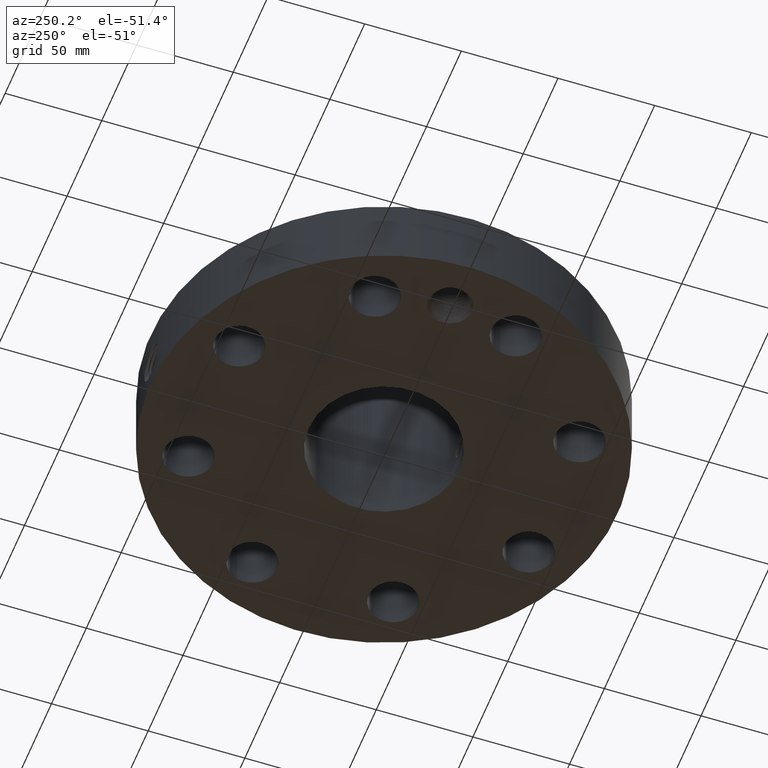
[diagram: clean part render]
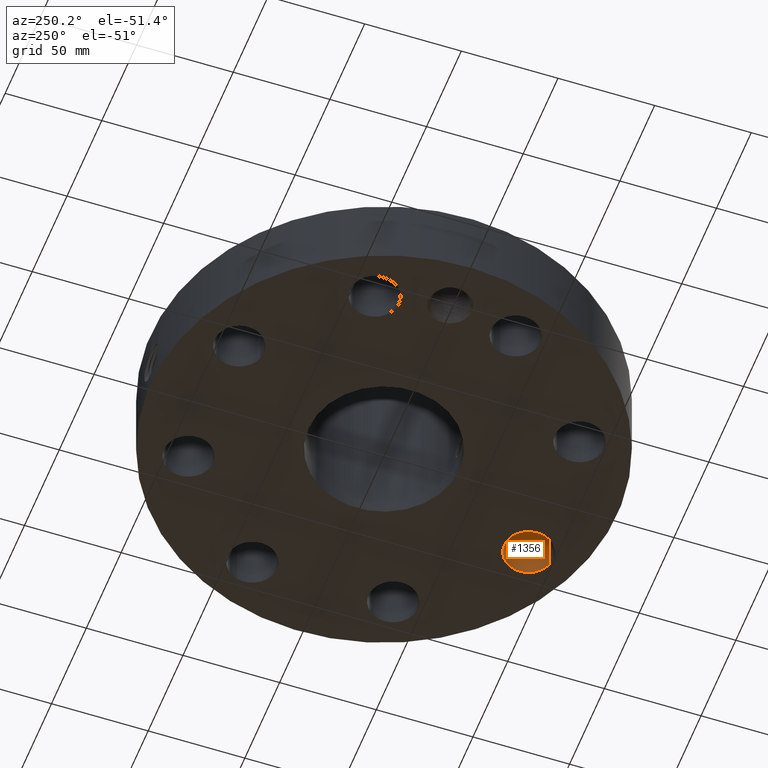
[diagram: same view with one face highlighted and labeled with its STEP entity id]
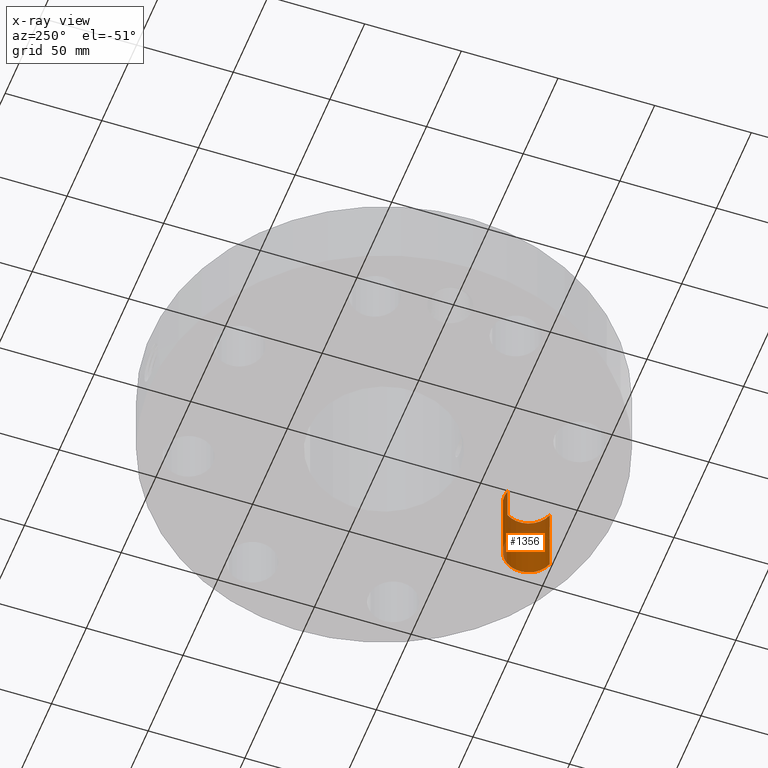
[diagram: x-ray of the same camera — body ghosted, the highlighted face saturated]
A machine part, auxiliary view. The second image highlights one B-rep face of the part: STEP entity #1356.
The next image is the same camera in x-ray: the body ghosted, the highlighted face saturated — about 21% of this face is hidden behind the body in this view.
In plain terms, the highlighted cylindrical surface (edge-blend (fillet) strip) has radius 12.7 mm, axis along (0, -0, -1).
Its self-contained STEP definition (entity closure, byte-faithful):
#248=AXIS2_PLACEMENT_3D('Circle Axis2P3D',#246,#247,$) ;
#562=AXIS2_PLACEMENT_3D('Circle Axis2P3D',#560,#561,$) ;
#1338=AXIS2_PLACEMENT_3D('Cylinder Axis2P3D',#1335,#1336,#1337) ;
#246=CARTESIAN_POINT('Axis2P3D Location',(1.43506287137,-3.46454824693,0.250000000001)) ;
#250=CARTESIAN_POINT('Vertex',(1.2942931058,-2.98477343194,0.250000000001)) ;
#252=CARTESIAN_POINT('Vertex',(1.57583263695,-3.94432306193,0.250000000001)) ;
#555=CARTESIAN_POINT('Vertex',(1.57583263695,-3.94432306193,1.75000000001)) ;
#557=CARTESIAN_POINT('Vertex',(1.2942931058,-2.98477343194,1.75000000001)) ;
#560=CARTESIAN_POINT('Axis2P3D Location',(1.43506287137,-3.46454824693,1.75000000001)) ;
#1335=CARTESIAN_POINT('Axis2P3D Location',(1.43506287137,-3.46454824693,1.74606299213)) ;
#1340=CARTESIAN_POINT('Line Origine',(1.2942931058,-2.98477343194,1.)) ;
#1345=CARTESIAN_POINT('Line Origine',(1.57583263695,-3.94432306193,1.)) ;
#247=DIRECTION('Axis2P3D Direction',(0.,0.,-0.0393700787402)) ;
#561=DIRECTION('Axis2P3D Direction',(0.,0.,-0.0393700787402)) ;
#1336=DIRECTION('Axis2P3D Direction',(0.,-0.,-0.0393700787402)) ;
#1337=DIRECTION('Axis2P3D XDirection',(0.0110842335096,-0.0377775444876,0.)) ;
#1341=DIRECTION('Vector Direction',(0.,0.,-0.0393700787402)) ;
#1346=DIRECTION('Vector Direction',(0.,0.,-0.0393700787402)) ;
#1342=VECTOR('Line Direction',#1341,0.0393700787402) ;
#1347=VECTOR('Line Direction',#1346,0.0393700787402) ;
#1351=ORIENTED_EDGE('',*,*,#1344,.F.) ;
#1352=ORIENTED_EDGE('',*,*,#254,.T.) ;
#1353=ORIENTED_EDGE('',*,*,#1349,.T.) ;
#1354=ORIENTED_EDGE('',*,*,#564,.F.) ;
#1356=ADVANCED_FACE('PartBody',(#1355),#1339,.F.) ;
#249=CIRCLE('generated circle',#248,0.500000000002) ;
#563=CIRCLE('generated circle',#562,0.500000000002) ;
#1339=CYLINDRICAL_SURFACE('generated cylinder',#1338,0.500000000002) ;
#254=EDGE_CURVE('',#251,#253,#249,.T.) ;
#564=EDGE_CURVE('',#558,#556,#563,.T.) ;
#1344=EDGE_CURVE('',#251,#558,#1343,.F.) ;
#1349=EDGE_CURVE('',#253,#556,#1348,.F.) ;
#1350=EDGE_LOOP('',(#1351,#1352,#1353,#1354)) ;
#1355=FACE_OUTER_BOUND('',#1350,.T.) ;
#1343=LINE('Line',#1340,#1342) ;
#1348=LINE('Line',#1345,#1347) ;
#251=VERTEX_POINT('',#250) ;
#253=VERTEX_POINT('',#252) ;
#556=VERTEX_POINT('',#555) ;
#558=VERTEX_POINT('',#557) ;